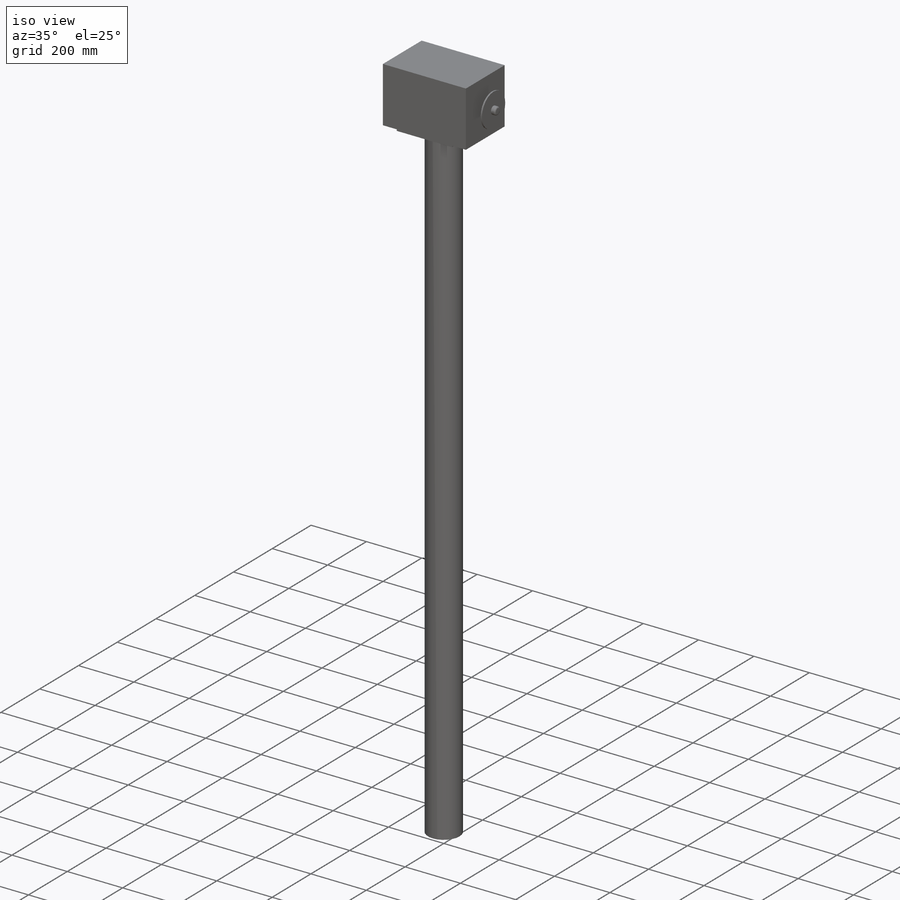
[diagram: iso view]
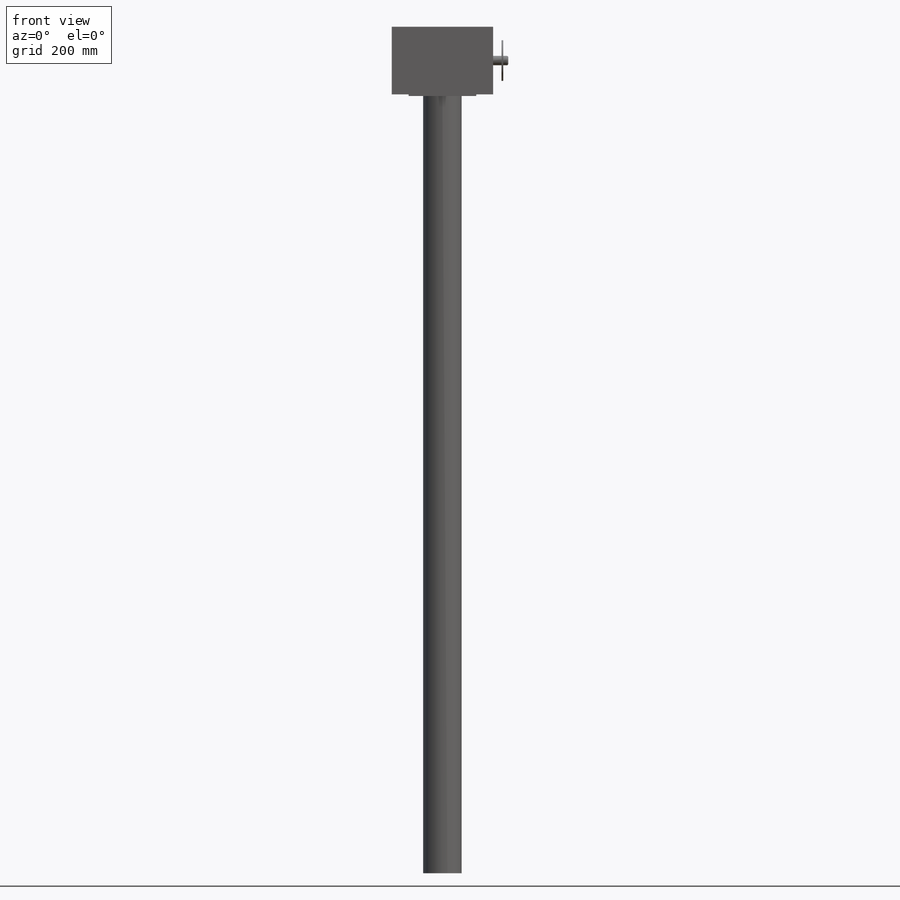
[diagram: front view]
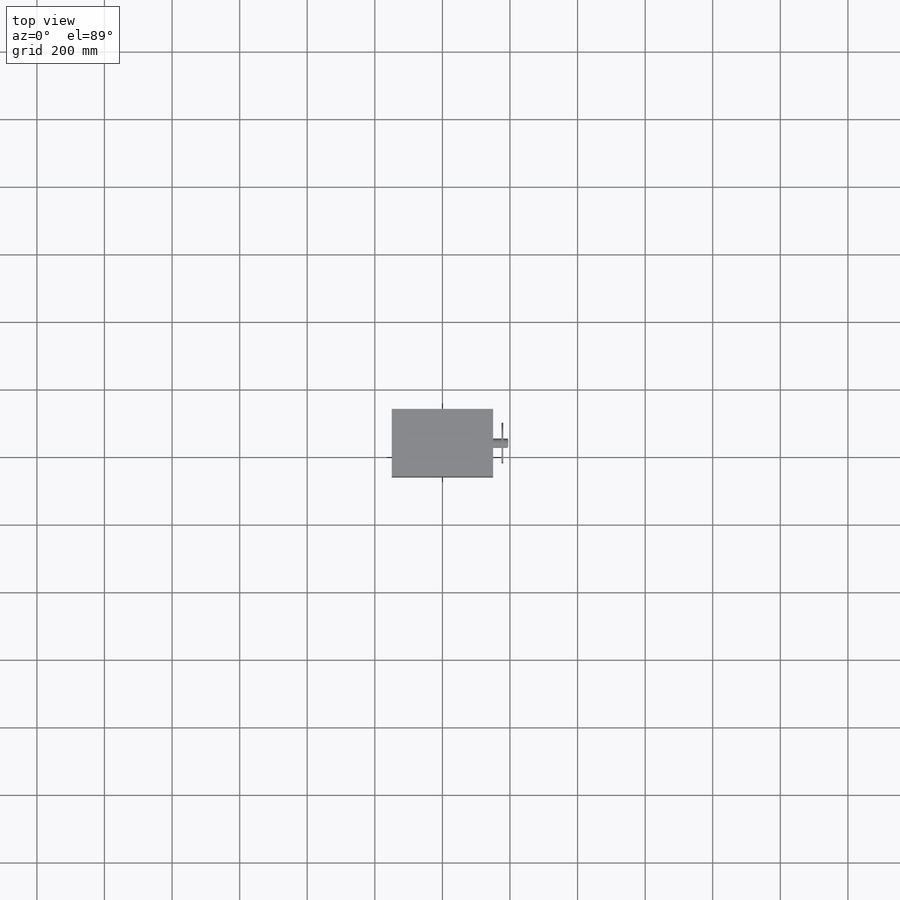
[diagram: top view]
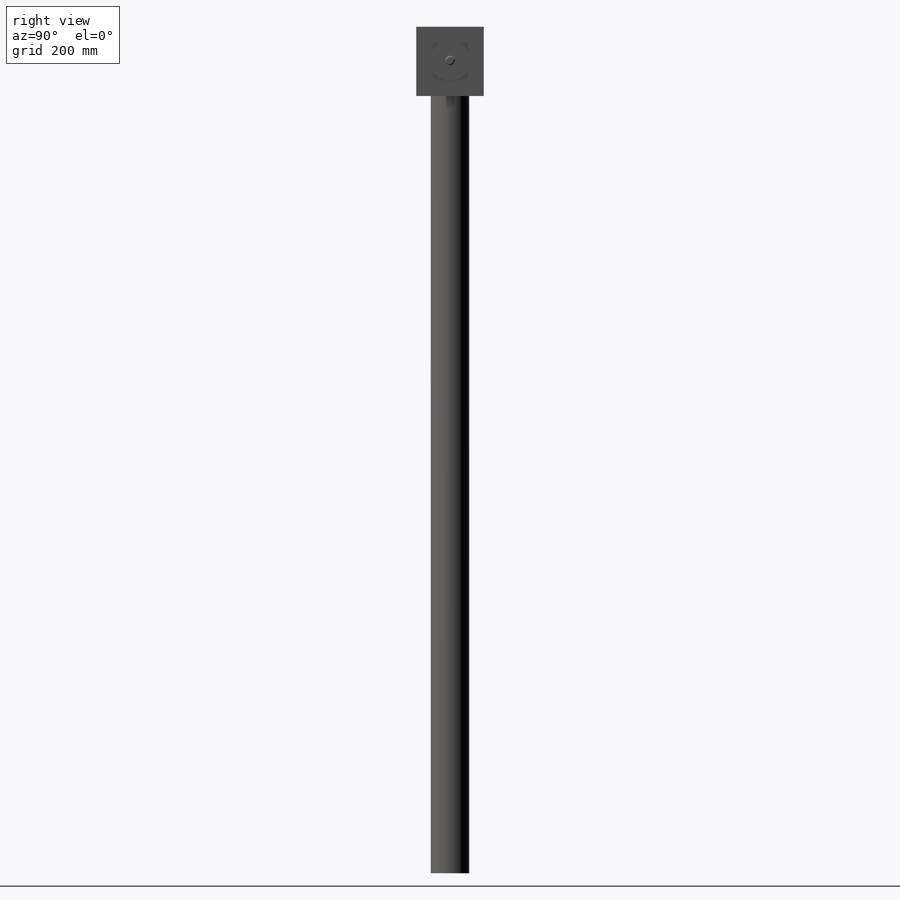
[diagram: right view]
SOLIDWORKS PART (.sldprt)
format: sldprt  version: not decoded by parser v0  size: 175,104 bytes
history: native  units: mm
features: sketch x6, extrude x6, material x1, fillet x1 (+13 scaffold rows collapsed)
feature tree (27):
  scaffold x13  (default folders/planes/origin — collapsed)
  material  "Material <not specified>"
  sketch  "Sketch1"  dims[D1=300.0mm D2=200.0mm]
  extrude  "Boss-Extrude1"  Depth=200mm
  sketch  "Sketch2"  dims[D1=28.0mm]
  extrude  "Boss-Extrude2"  Depth=25mm
  sketch  "Sketch3"  dims[D1=100.0mm]
  extrude  "Boss-Extrude3"  Depth=5mm
  sketch  "Sketch4"  dims[D1=28.0mm]
  extrude  "Boss-Extrude4"  Depth=15mm
  fillet  "Fillet1"  Radius=5mm
  sketch  "Sketch5"  dims[D1=200.0mm]
  extrude  "Boss-Extrude5"  Depth=5mm
  sketch  "Sketch6"  dims[D1=114.0mm]
  extrude  "Boss-Extrude6"  Depth=2300mm
decode coverage: 13 of 13 modeling features carry decoded parameters
note: suppression state not decoded; provenance and decode notes live in map.json
